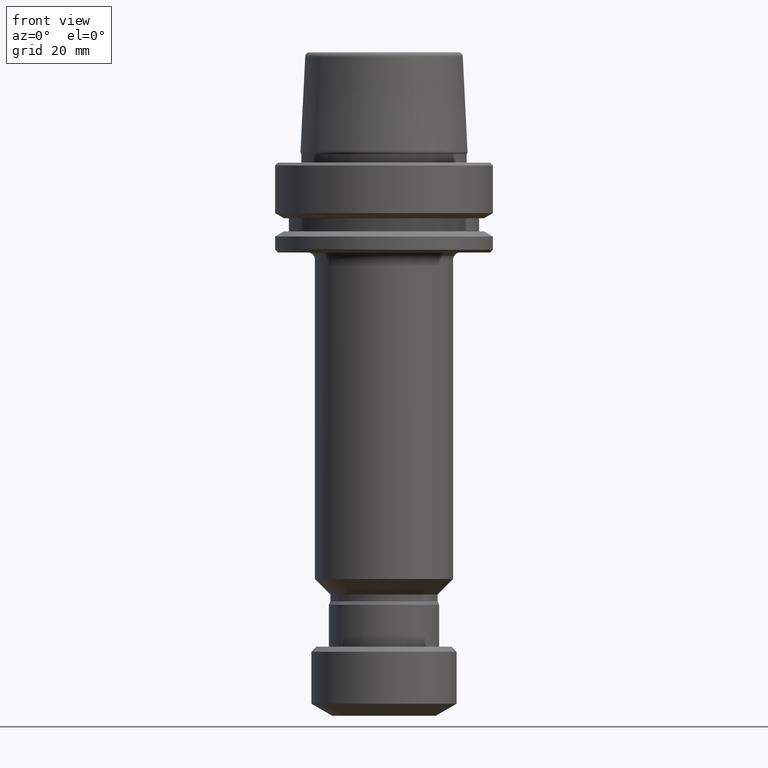
[diagram: clean part render]
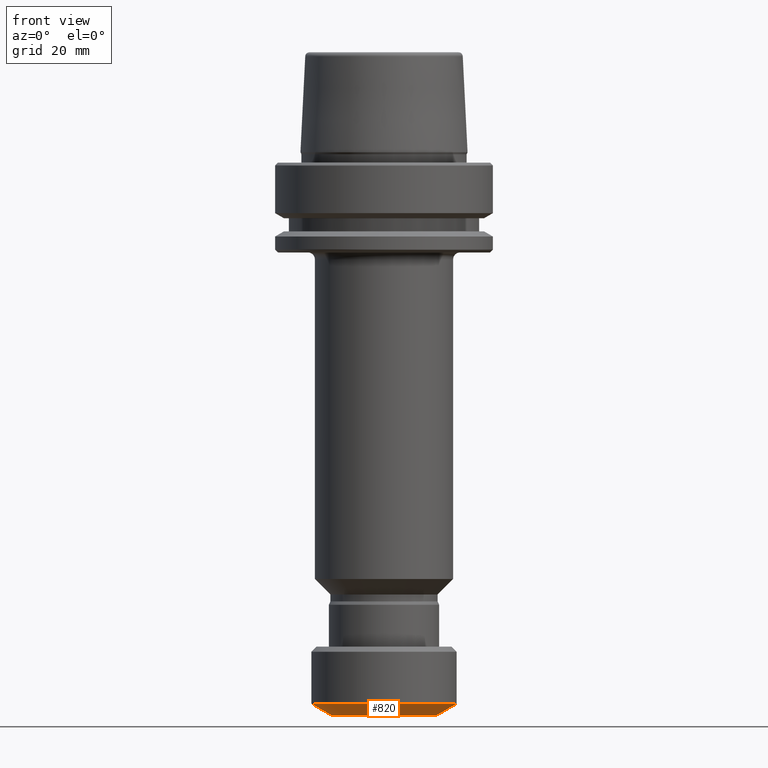
[diagram: same view with one face highlighted and labeled with its STEP entity id]
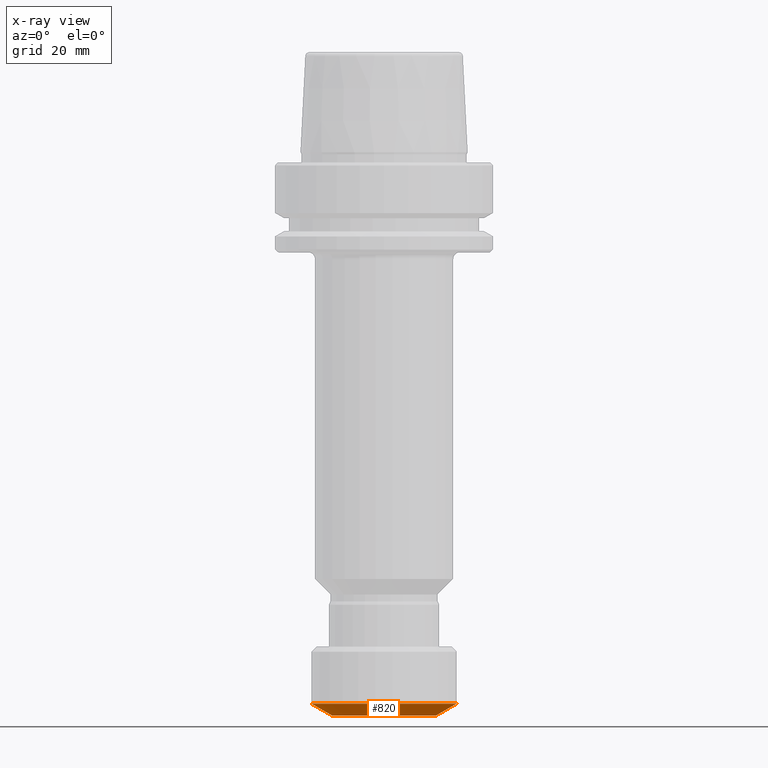
[diagram: x-ray of the same camera — body ghosted, the highlighted face saturated]
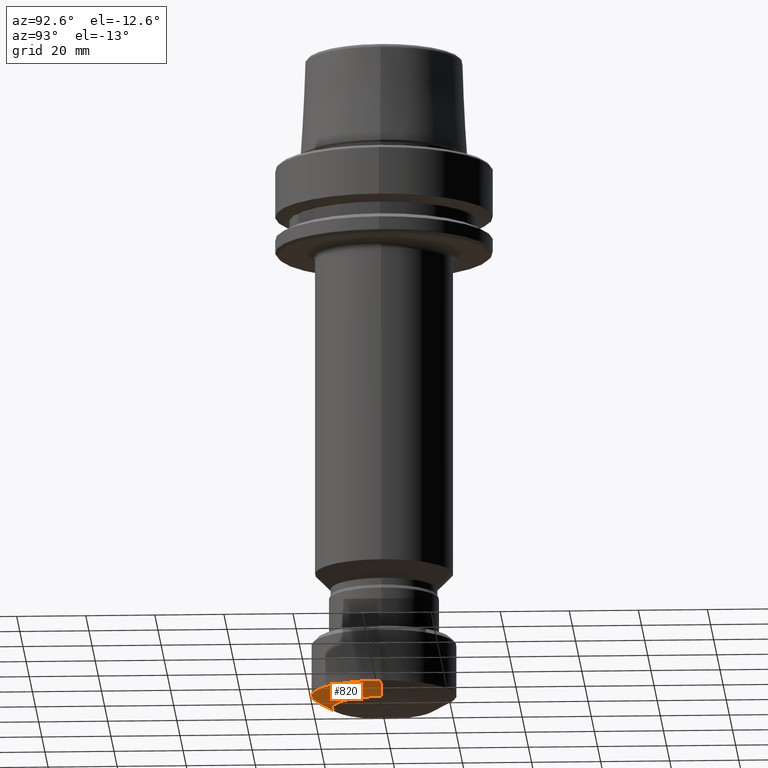
[diagram: same view with one face highlighted and labeled with its STEP entity id]
A machine part, front view. The second image highlights one B-rep face of the part: STEP entity #820.
The next image is the same camera in x-ray: the body ghosted, the highlighted face saturated — about 0% of this face is hidden behind the body in this view.
A second angle (auxiliary view) of the same face is appended — the face is thin or edge-on in the first view.
In plain terms, the highlighted conical surface has half-angle 60 deg.
Its self-contained STEP definition (entity closure, byte-faithful):
#60 = VECTOR ( 'NONE', #1176, 999.9999999999998900 ) ;
#123 = DIRECTION ( 'NONE',  ( -0.0000000000000000000, -0.0000000000000000000, 1.000000000000000000 ) ) ;
#276 = CIRCLE ( 'NONE', #1228, 15.00000000000000000 ) ;
#290 = DIRECTION ( 'NONE',  ( 1.000000000000000000, 0.0000000000000000000, 0.0000000000000000000 ) ) ;
#409 = CARTESIAN_POINT ( 'NONE',  ( -21.00000000000000000, 2.571758278209441700E-015, -156.5358983848622900 ) ) ;
#425 = CONICAL_SURFACE ( 'NONE', #855, 15.00000000000000000, 1.047197551196602700 ) ;
#470 = VERTEX_POINT ( 'NONE', #1587 ) ;
#477 = CARTESIAN_POINT ( 'NONE',  ( 21.00000000000000000, 0.0000000000000000000, -156.5358983848622900 ) ) ;
#502 = DIRECTION ( 'NONE',  ( 0.8660254037844411500, 0.0000000000000000000, 0.4999999999999957300 ) ) ;
#604 = DIRECTION ( 'NONE',  ( 1.000000000000000000, 0.0000000000000000000, 0.0000000000000000000 ) ) ;
#613 = DIRECTION ( 'NONE',  ( -0.0000000000000000000, -0.0000000000000000000, 1.000000000000000000 ) ) ;
#659 = EDGE_CURVE ( 'NONE', #470, #918, #1077, .T. ) ;
#820 = ADVANCED_FACE ( 'NONE', ( #864 ), #425, .T. ) ;
#839 = CARTESIAN_POINT ( 'NONE',  ( 15.00000000000000000, 0.0000000000000000000, -160.0000000000000000 ) ) ;
#855 = AXIS2_PLACEMENT_3D ( 'NONE', #1166, #1147, #1064 ) ;
#864 = FACE_OUTER_BOUND ( 'NONE', #1555, .T. ) ;
#879 = CARTESIAN_POINT ( 'NONE',  ( 15.00000000000000000, 0.0000000000000000000, -160.0000000000000000 ) ) ;
#918 = VERTEX_POINT ( 'NONE', #409 ) ;
#919 = ORIENTED_EDGE ( 'NONE', *, *, #659, .F. ) ;
#935 = CARTESIAN_POINT ( 'NONE',  ( 0.0000000000000000000, 0.0000000000000000000, -156.5358983848622900 ) ) ;
#949 = CARTESIAN_POINT ( 'NONE',  ( 0.0000000000000000000, 0.0000000000000000000, -160.0000000000000000 ) ) ;
#1064 = DIRECTION ( 'NONE',  ( 1.000000000000000000, 0.0000000000000000000, 0.0000000000000000000 ) ) ;
#1077 = LINE ( 'NONE', #1533, #60 ) ;
#1101 = EDGE_CURVE ( 'NONE', #1156, #1542, #1209, .T. ) ;
#1147 = DIRECTION ( 'NONE',  ( -0.0000000000000000000, -0.0000000000000000000, 1.000000000000000000 ) ) ;
#1156 = VERTEX_POINT ( 'NONE', #879 ) ;
#1166 = CARTESIAN_POINT ( 'NONE',  ( 0.0000000000000000000, 0.0000000000000000000, -160.0000000000000000 ) ) ;
#1176 = DIRECTION ( 'NONE',  ( -0.8660254037844411500, 1.060575238724910100E-016, 0.4999999999999957300 ) ) ;
#1209 = LINE ( 'NONE', #839, #1547 ) ;
#1228 = AXIS2_PLACEMENT_3D ( 'NONE', #949, #613, #290 ) ;
#1287 = ORIENTED_EDGE ( 'NONE', *, *, #1303, .F. ) ;
#1302 = ORIENTED_EDGE ( 'NONE', *, *, #1101, .T. ) ;
#1303 = EDGE_CURVE ( 'NONE', #918, #1542, #1487, .T. ) ;
#1311 = ORIENTED_EDGE ( 'NONE', *, *, #1536, .T. ) ;
#1403 = AXIS2_PLACEMENT_3D ( 'NONE', #935, #123, #604 ) ;
#1487 = CIRCLE ( 'NONE', #1403, 21.00000000000000000 ) ;
#1533 = CARTESIAN_POINT ( 'NONE',  ( -15.00000000000000000, 1.836970198721029600E-015, -160.0000000000000000 ) ) ;
#1536 = EDGE_CURVE ( 'NONE', #470, #1156, #276, .T. ) ;
#1542 = VERTEX_POINT ( 'NONE', #477 ) ;
#1547 = VECTOR ( 'NONE', #502, 999.9999999999998900 ) ;
#1555 = EDGE_LOOP ( 'NONE', ( #919, #1311, #1302, #1287 ) ) ;
#1587 = CARTESIAN_POINT ( 'NONE',  ( -15.00000000000000000, 2.204364238465235400E-015, -160.0000000000000000 ) ) ;